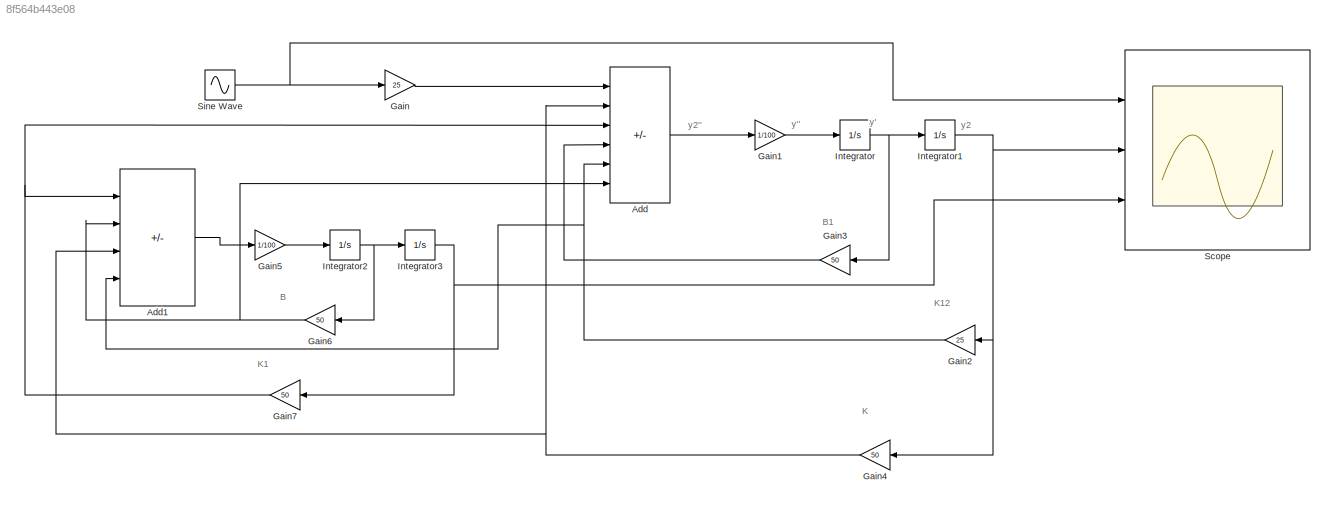
MODEL slx_8f564b443e08
KIND model
CONFIG AbsTol = auto
CONFIG EnableMultiTasking = off
CONFIG FixedStep = auto
CONFIG MaxStep = auto
CONFIG MinStep = auto
CONFIG RelTol = 1e-3
CONFIG SampleTimeConstraint = Unconstrained
CONFIG SolverName = VariableStepAuto
CONFIG StartTime = 0.0
CONFIG StopTime = 100
BLOCK [Sum] Add
  IconShape = rectangular
  Inputs = +-+--+
  Ports = [6, 1]
BLOCK [Sum] Add1
  IconShape = rectangular
  Inputs = --++
  Ports = [4, 1]
BLOCK [Gain] Gain
  Gain = 25
BLOCK [Gain] Gain1
  Gain = 1/100
BLOCK [Gain] Gain2
  Gain = 25
BLOCK [Gain] Gain3
  Gain = 50
BLOCK [Gain] Gain4
  Gain = 50
BLOCK [Gain] Gain5
  Gain = 1/100
BLOCK [Gain] Gain6
  Gain = 50
BLOCK [Gain] Gain7
  Gain = 50
BLOCK [Integrator] Integrator
  Ports = [1, 1]
BLOCK [Integrator] Integrator1
  Ports = [1, 1]
BLOCK [Integrator] Integrator2
  Ports = [1, 1]
BLOCK [Integrator] Integrator3
  Ports = [1, 1]
BLOCK [Scope] Scope
  Floating = off
  NumInputPorts = 3
  Ports = [3]
  ScopeSpecificationString = Simulink.scopes.TimeScopeBlockCfg('CurrentConfiguration', extmgr.ConfigurationSet(extmgr.Configuration('Core','General UI',true),extmgr.Configuration('Core','Source UI',true),extmgr.Configuration('Sources','WiredSimulink',true),extmgr.Configuration('Visuals','Time Domain',true,'SerializedDisplays',{struct('MinYLimReal','-1.23653','MaxYLimReal','1.24665','YLabelReal','','MinYLimMag','0.00000','MaxY...<+2761ch>
BLOCK [Sin] Sine Wave
  Ports = [0, 1]
  SampleTime = 0
ANNOTATION (root): B
ANNOTATION (root): B1
ANNOTATION (root): K
ANNOTATION (root): K1
ANNOTATION (root): K12
ANNOTATION (root): y'
ANNOTATION (root): y''
ANNOTATION (root): y2
ANNOTATION (root): y2''
LINE Add1:1 -> Gain5:1
LINE Add:1 -> Gain1:1
LINE Gain1:1 -> Integrator:1
NET Gain2:1 -> Add1:4, Add:5
LINE Gain3:1 -> Add:4
NET Gain4:1 -> Add1:3, Add:2
LINE Gain5:1 -> Integrator2:1
NET Gain6:1 -> Add1:2, Add:6
NET Gain7:1 -> Add1:1, Add:3
LINE Gain:1 -> Add:1
NET Integrator1:1 -> Gain2:1, Gain4:1, Scope:2
NET Integrator2:1 -> Gain6:1, Integrator3:1
NET Integrator3:1 -> Gain7:1, Scope:3
NET Integrator:1 -> Gain3:1, Integrator1:1
NET Sine Wave:1 -> Gain:1, Scope:1
note: NET lines group one-source signal fan-out (src -> all destinations, sorted); 1:1 wires keep LINE
